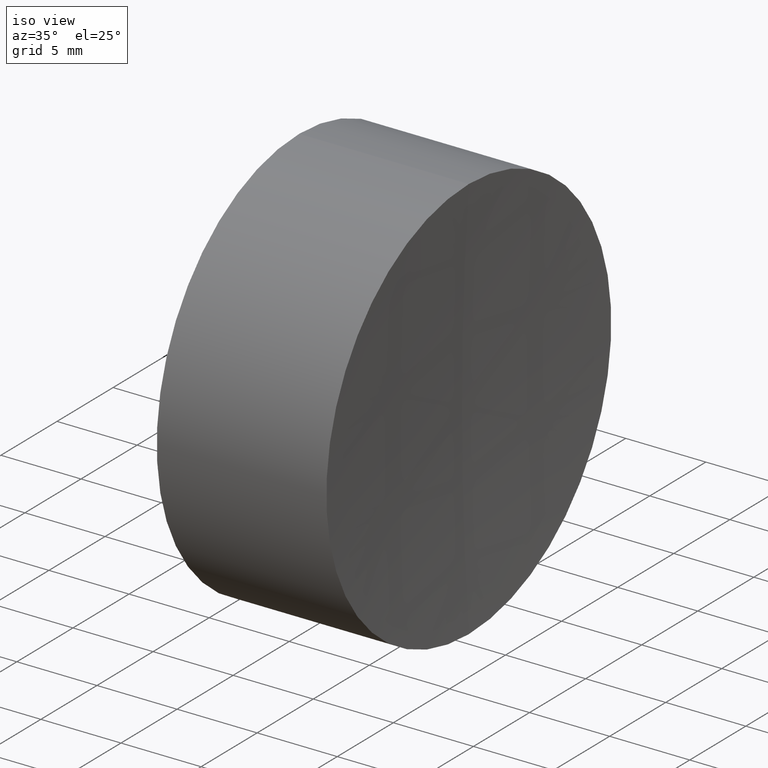
[diagram: clean part render]
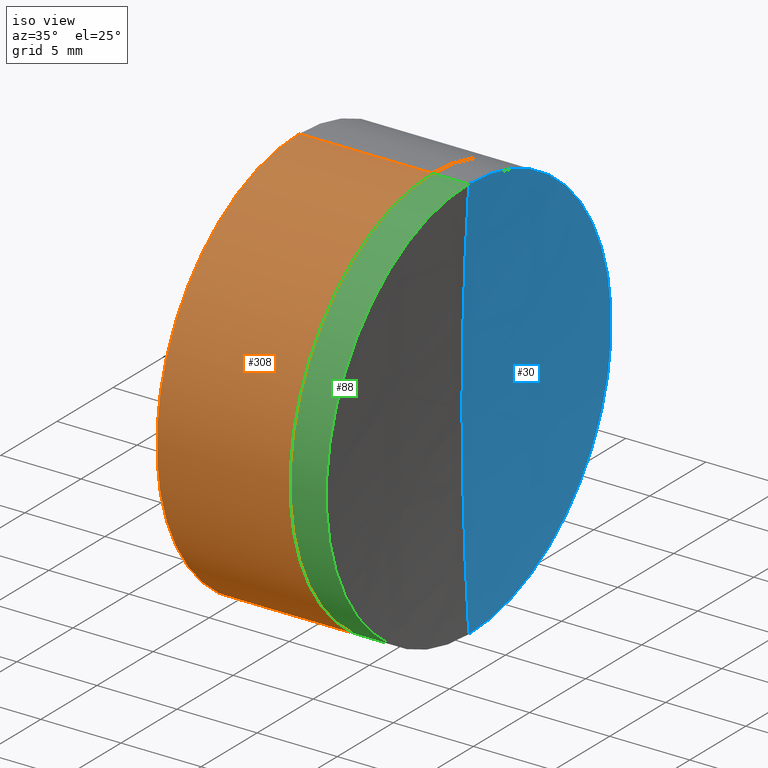
[diagram: same view with three faces highlighted in distinct colors, each labeled with its STEP entity id]
A machine part, iso view with three faces highlighted in distinct colors.
Their STEP definitions:

[orange] entity #308 — the highlighted cylindrical surface (partial cylindrical patch) has radius 12.7 mm, axis along (-1, -0, 0).
#12 = AXIS2_PLACEMENT_3D ( 'NONE', #249, #59, #230 ) ;
#24 = AXIS2_PLACEMENT_3D ( 'NONE', #310, #117, #283 ) ;
#29 = EDGE_CURVE ( 'NONE', #158, #320, #47, .T. ) ;
#45 = EDGE_CURVE ( 'NONE', #247, #120, #128, .T. ) ;
#47 = CIRCLE ( 'NONE', #12, 12.70000000000004500 ) ;
#59 = DIRECTION ( 'NONE',  ( -1.000000000000000000, -0.0000000000000000000, 1.836970198721029700E-016 ) ) ;
#82 = CARTESIAN_POINT ( 'NONE',  ( -0.8160621761658039000, 0.0000000000000000000, 0.0000000000000000000 ) ) ;
#106 = FACE_OUTER_BOUND ( 'NONE', #162, .T. ) ;
#117 = DIRECTION ( 'NONE',  ( -1.000000000000000000, -0.0000000000000000000, 1.836970198721029700E-016 ) ) ;
#120 = VERTEX_POINT ( 'NONE', #166 ) ;
#128 = CIRCLE ( 'NONE', #24, 12.70000000000004700 ) ;
#139 = DIRECTION ( 'NONE',  ( -1.000000000000000000, -0.0000000000000000000, 1.836970198721029700E-016 ) ) ;
#158 = VERTEX_POINT ( 'NONE', #183 ) ;
#162 = EDGE_LOOP ( 'NONE', ( #300, #214, #346, #234 ) ) ;
#164 = DIRECTION ( 'NONE',  ( -1.000000000000000000, -0.0000000000000000000, 1.836970198721029700E-016 ) ) ;
#166 = CARTESIAN_POINT ( 'NONE',  ( 265.4434669434605200, 0.0000000000000000000, 12.69999999999999900 ) ) ;
#180 = VECTOR ( 'NONE', #164, 1000.000000000000000 ) ;
#181 = CARTESIAN_POINT ( 'NONE',  ( 265.4434669434605200, 1.555301434917144500E-015, -12.70000000000009700 ) ) ;
#183 = CARTESIAN_POINT ( 'NONE',  ( 257.1233165672844600, 1.555301434917144000E-015, -12.70000000000004900 ) ) ;
#198 = LINE ( 'NONE', #315, #256 ) ;
#212 = AXIS2_PLACEMENT_3D ( 'NONE', #82, #139, #327 ) ;
#214 = ORIENTED_EDGE ( 'NONE', *, *, #45, .T. ) ;
#222 = CARTESIAN_POINT ( 'NONE',  ( 257.1233165672844600, 0.0000000000000000000, 12.69999999999999900 ) ) ;
#230 = DIRECTION ( 'NONE',  ( 0.0000000000000000000, 0.0000000000000000000, 1.000000000000000000 ) ) ;
#234 = ORIENTED_EDGE ( 'NONE', *, *, #29, .F. ) ;
#238 = CYLINDRICAL_SURFACE ( 'NONE', #212, 12.70000000000004700 ) ;
#242 = CARTESIAN_POINT ( 'NONE',  ( -0.8160621761658063400, 1.555301434917144500E-015, -12.70000000000004700 ) ) ;
#247 = VERTEX_POINT ( 'NONE', #181 ) ;
#249 = CARTESIAN_POINT ( 'NONE',  ( 257.1233165672844600, 0.0000000000000000000, -4.738269518283348700E-014 ) ) ;
#256 = VECTOR ( 'NONE', #314, 1000.000000000000000 ) ;
#276 = EDGE_CURVE ( 'NONE', #120, #320, #198, .T. ) ;
#283 = DIRECTION ( 'NONE',  ( 0.0000000000000000000, 0.0000000000000000000, 1.000000000000000000 ) ) ;
#300 = ORIENTED_EDGE ( 'NONE', *, *, #316, .F. ) ;
#308 = ADVANCED_FACE ( 'NONE', ( #106 ), #238, .T. ) ;
#310 = CARTESIAN_POINT ( 'NONE',  ( 265.4434669434605200, 0.0000000000000000000, -4.891108201182477700E-014 ) ) ;
#314 = DIRECTION ( 'NONE',  ( -1.000000000000000000, -0.0000000000000000000, 1.836970198721029700E-016 ) ) ;
#315 = CARTESIAN_POINT ( 'NONE',  ( -0.8160621761658015700, 0.0000000000000000000, 12.70000000000004700 ) ) ;
#316 = EDGE_CURVE ( 'NONE', #247, #158, #317, .T. ) ;
#317 = LINE ( 'NONE', #242, #180 ) ;
#320 = VERTEX_POINT ( 'NONE', #222 ) ;
#327 = DIRECTION ( 'NONE',  ( 1.878145495644173900E-016, 0.0000000000000000000, 1.000000000000000000 ) ) ;
#346 = ORIENTED_EDGE ( 'NONE', *, *, #276, .T. ) ;

[blue] entity #30 — the highlighted spherical surface has radius 189.2 mm.
#3 = CARTESIAN_POINT ( 'NONE',  ( 267.7101150449228700, 0.0000000000000000000, 0.0000000000000000000 ) ) ;
#7 = EDGE_LOOP ( 'NONE', ( #76, #23, #260 ) ) ;
#9 = DIRECTION ( 'NONE',  ( 0.0000000000000000000, 1.000000000000000000, 0.0000000000000000000 ) ) ;
#22 = AXIS2_PLACEMENT_3D ( 'NONE', #331, #143, #305 ) ;
#23 = ORIENTED_EDGE ( 'NONE', *, *, #126, .F. ) ;
#25 = CARTESIAN_POINT ( 'NONE',  ( 267.7101150449228700, 0.0000000000000000000, 12.69999999999999800 ) ) ;
#30 = ADVANCED_FACE ( 'NONE', ( #337 ), #264, .F. ) ;
#31 = DIRECTION ( 'NONE',  ( 0.0000000000000000000, 0.0000000000000000000, 1.000000000000000000 ) ) ;
#41 = AXIS2_PLACEMENT_3D ( 'NONE', #142, #304, #112 ) ;
#42 = AXIS2_PLACEMENT_3D ( 'NONE', #173, #9, #31 ) ;
#46 = CIRCLE ( 'NONE', #22, 189.1999999999999900 ) ;
#52 = VERTEX_POINT ( 'NONE', #204 ) ;
#74 = EDGE_CURVE ( 'NONE', #328, #52, #46, .T. ) ;
#76 = ORIENTED_EDGE ( 'NONE', *, *, #74, .F. ) ;
#103 = AXIS2_PLACEMENT_3D ( 'NONE', #3, #165, #288 ) ;
#108 = EDGE_CURVE ( 'NONE', #129, #52, #296, .T. ) ;
#112 = DIRECTION ( 'NONE',  ( 0.0000000000000000000, 0.0000000000000000000, -1.000000000000000000 ) ) ;
#126 = EDGE_CURVE ( 'NONE', #129, #328, #135, .T. ) ;
#129 = VERTEX_POINT ( 'NONE', #25 ) ;
#135 = CIRCLE ( 'NONE', #103, 12.69999999999999800 ) ;
#142 = CARTESIAN_POINT ( 'NONE',  ( 456.4833917553725100, 0.0000000000000000000, -2.441456779568677200E-014 ) ) ;
#143 = DIRECTION ( 'NONE',  ( -0.0000000000000000000, 1.000000000000000000, 1.224646799147353200E-016 ) ) ;
#165 = DIRECTION ( 'NONE',  ( -1.000000000000000000, -0.0000000000000000000, -0.0000000000000000000 ) ) ;
#173 = CARTESIAN_POINT ( 'NONE',  ( 456.4833917553725100, 0.0000000000000000000, -2.441456779568677200E-014 ) ) ;
#189 = CARTESIAN_POINT ( 'NONE',  ( 267.7101150449228700, 1.555301434917138200E-015, -12.69999999999999800 ) ) ;
#204 = CARTESIAN_POINT ( 'NONE',  ( 267.2833917553725200, 0.0000000000000000000, -1.282940907575281200E-014 ) ) ;
#260 = ORIENTED_EDGE ( 'NONE', *, *, #108, .T. ) ;
#264 = SPHERICAL_SURFACE ( 'NONE', #42, 189.1999999999999900 ) ;
#288 = DIRECTION ( 'NONE',  ( 0.0000000000000000000, 0.0000000000000000000, 1.000000000000000000 ) ) ;
#296 = CIRCLE ( 'NONE', #41, 189.1999999999999900 ) ;
#304 = DIRECTION ( 'NONE',  ( 0.0000000000000000000, -1.000000000000000000, 0.0000000000000000000 ) ) ;
#305 = DIRECTION ( 'NONE',  ( 0.0000000000000000000, -1.224646799147353200E-016, 1.000000000000000000 ) ) ;
#328 = VERTEX_POINT ( 'NONE', #189 ) ;
#331 = CARTESIAN_POINT ( 'NONE',  ( 456.4833917553725100, 0.0000000000000000000, -2.441456779568677200E-014 ) ) ;
#337 = FACE_OUTER_BOUND ( 'NONE', #7, .T. ) ;

[green] entity #88 — the highlighted cylindrical surface (partial cylindrical patch) has radius 12.7 mm, axis along (-1, -0, -0).
#4 = DIRECTION ( 'NONE',  ( 0.0000000000000000000, 0.0000000000000000000, 1.000000000000000000 ) ) ;
#8 = ORIENTED_EDGE ( 'NONE', *, *, #295, .T. ) ;
#15 = ORIENTED_EDGE ( 'NONE', *, *, #235, .F. ) ;
#25 = CARTESIAN_POINT ( 'NONE',  ( 267.7101150449228700, 0.0000000000000000000, 12.69999999999999800 ) ) ;
#27 = CARTESIAN_POINT ( 'NONE',  ( 267.7101150449228700, 0.0000000000000000000, 0.0000000000000000000 ) ) ;
#28 = DIRECTION ( 'NONE',  ( 0.0000000000000000000, 0.0000000000000000000, 1.000000000000000000 ) ) ;
#33 = CARTESIAN_POINT ( 'NONE',  ( 265.4434669434605200, 0.0000000000000000000, 12.69999999999995000 ) ) ;
#37 = CARTESIAN_POINT ( 'NONE',  ( 257.1233165672844600, 1.555301434917135700E-015, -12.69999999999997400 ) ) ;
#50 = DIRECTION ( 'NONE',  ( -1.000000000000000000, -0.0000000000000000000, -0.0000000000000000000 ) ) ;
#65 = DIRECTION ( 'NONE',  ( 0.0000000000000000000, 0.0000000000000000000, 1.000000000000000000 ) ) ;
#66 = AXIS2_PLACEMENT_3D ( 'NONE', #27, #196, #4 ) ;
#73 = DIRECTION ( 'NONE',  ( -1.000000000000000000, -0.0000000000000000000, -0.0000000000000000000 ) ) ;
#84 = AXIS2_PLACEMENT_3D ( 'NONE', #199, #168, #28 ) ;
#86 = CARTESIAN_POINT ( 'NONE',  ( 265.4434669434605200, 1.555301434917132300E-015, -12.69999999999995000 ) ) ;
#88 = ADVANCED_FACE ( 'NONE', ( #125 ), #270, .T. ) ;
#90 = EDGE_CURVE ( 'NONE', #328, #129, #340, .T. ) ;
#95 = AXIS2_PLACEMENT_3D ( 'NONE', #121, #73, #65 ) ;
#121 = CARTESIAN_POINT ( 'NONE',  ( 265.4434669434605200, 0.0000000000000000000, 0.0000000000000000000 ) ) ;
#124 = CIRCLE ( 'NONE', #95, 12.69999999999995100 ) ;
#125 = FACE_OUTER_BOUND ( 'NONE', #221, .T. ) ;
#129 = VERTEX_POINT ( 'NONE', #25 ) ;
#131 = LINE ( 'NONE', #37, #267 ) ;
#136 = VERTEX_POINT ( 'NONE', #86 ) ;
#150 = VERTEX_POINT ( 'NONE', #33 ) ;
#168 = DIRECTION ( 'NONE',  ( -1.000000000000000000, -0.0000000000000000000, -0.0000000000000000000 ) ) ;
#186 = LINE ( 'NONE', #209, #246 ) ;
#189 = CARTESIAN_POINT ( 'NONE',  ( 267.7101150449228700, 1.555301434917138200E-015, -12.69999999999999800 ) ) ;
#196 = DIRECTION ( 'NONE',  ( -1.000000000000000000, -0.0000000000000000000, -0.0000000000000000000 ) ) ;
#199 = CARTESIAN_POINT ( 'NONE',  ( 257.1233165672844600, 0.0000000000000000000, 0.0000000000000000000 ) ) ;
#209 = CARTESIAN_POINT ( 'NONE',  ( 257.1233165672844600, 0.0000000000000000000, 12.69999999999997400 ) ) ;
#221 = EDGE_LOOP ( 'NONE', ( #15, #344, #8, #307 ) ) ;
#235 = EDGE_CURVE ( 'NONE', #328, #136, #131, .T. ) ;
#246 = VECTOR ( 'NONE', #50, 1000.000000000000000 ) ;
#259 = EDGE_CURVE ( 'NONE', #136, #150, #124, .T. ) ;
#261 = DIRECTION ( 'NONE',  ( -1.000000000000000000, -0.0000000000000000000, -0.0000000000000000000 ) ) ;
#267 = VECTOR ( 'NONE', #261, 1000.000000000000000 ) ;
#270 = CYLINDRICAL_SURFACE ( 'NONE', #84, 12.69999999999997400 ) ;
#295 = EDGE_CURVE ( 'NONE', #129, #150, #186, .T. ) ;
#307 = ORIENTED_EDGE ( 'NONE', *, *, #259, .F. ) ;
#328 = VERTEX_POINT ( 'NONE', #189 ) ;
#340 = CIRCLE ( 'NONE', #66, 12.69999999999999800 ) ;
#344 = ORIENTED_EDGE ( 'NONE', *, *, #90, .T. ) ;